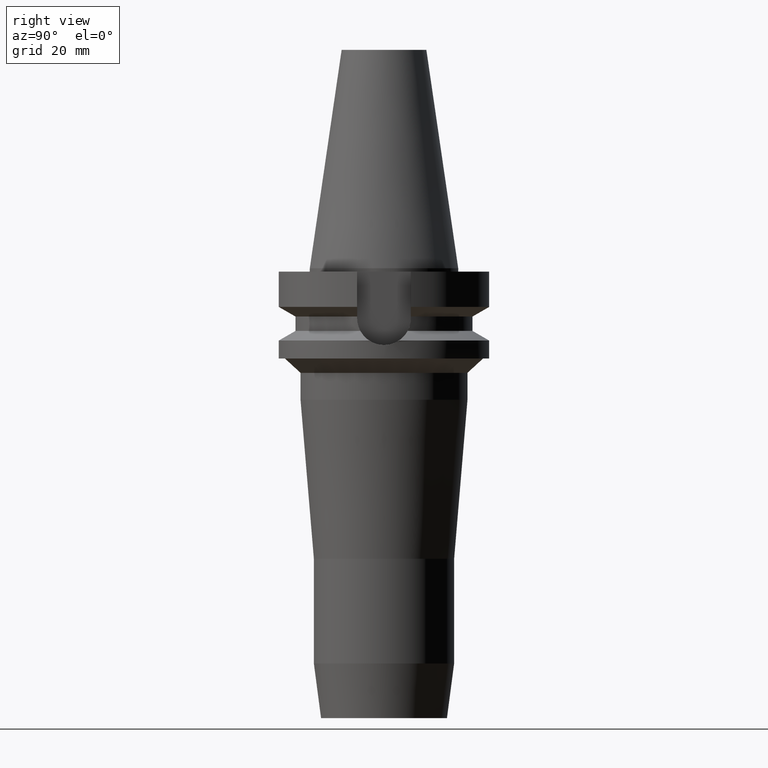
[diagram: clean part render]
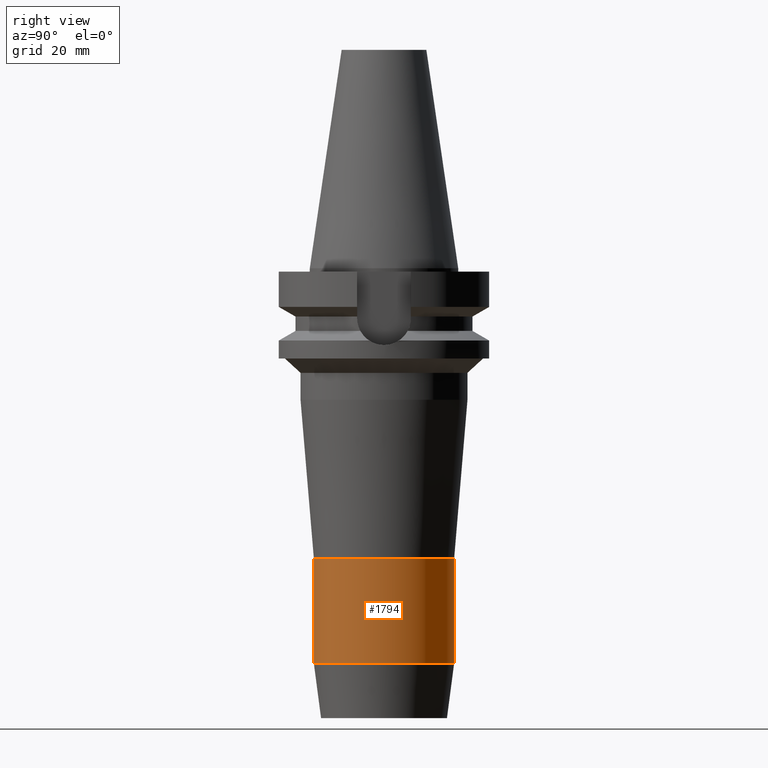
[diagram: same view with one face highlighted and labeled with its STEP entity id]
A machine part, right view. The second image highlights one B-rep face of the part: STEP entity #1794.
In plain terms, the highlighted cylindrical surface (partial cylindrical patch) has radius 21 mm, axis along (0, 0, -1).
Its self-contained STEP definition (entity closure, byte-faithful):
#455=CARTESIAN_POINT('',(0.E0,-1.549601491868E-14,-1.183691286576E2));
#456=DIRECTION('',(0.E0,0.E0,1.E0));
#457=DIRECTION('',(0.E0,-1.E0,0.E0));
#458=AXIS2_PLACEMENT_3D('',#455,#456,#457);
#478=DIRECTION('',(0.E0,-3.963928361392E-14,-1.E0));
#479=VECTOR('',#478,3.136912865760E1);
#480=CARTESIAN_POINT('',(0.E0,-2.1E1,-8.7E1));
#481=LINE('',#480,#479);
#485=DIRECTION('',(0.E0,3.918626322976E-14,-1.E0));
#486=VECTOR('',#485,3.136912865760E1);
#487=CARTESIAN_POINT('',(0.E0,2.1E1,-8.7E1));
#488=LINE('',#487,#486);
#499=CARTESIAN_POINT('',(0.E0,0.E0,-8.7E1));
#500=DIRECTION('',(0.E0,0.E0,-1.E0));
#501=DIRECTION('',(0.E0,1.E0,0.E0));
#502=AXIS2_PLACEMENT_3D('',#499,#500,#501);
#1236=CARTESIAN_POINT('',(0.E0,2.1E1,-1.183691286576E2));
#1237=VERTEX_POINT('',#1236);
#1238=CARTESIAN_POINT('',(0.E0,-2.1E1,-1.183691286576E2));
#1239=VERTEX_POINT('',#1238);
#1240=CARTESIAN_POINT('',(0.E0,2.1E1,-8.7E1));
#1241=VERTEX_POINT('',#1240);
#1242=CARTESIAN_POINT('',(0.E0,-2.1E1,-8.7E1));
#1243=VERTEX_POINT('',#1242);
#1782=CARTESIAN_POINT('',(0.E0,0.E0,7.5405E1));
#1783=DIRECTION('',(0.E0,0.E0,-1.E0));
#1784=DIRECTION('',(0.E0,-1.E0,0.E0));
#1785=AXIS2_PLACEMENT_3D('',#1782,#1783,#1784);
#1786=CYLINDRICAL_SURFACE('',#1785,2.1E1);
#1787=ORIENTED_EDGE('',*,*,#1772,.T.);
#1788=ORIENTED_EDGE('',*,*,#1749,.F.);
#1789=ORIENTED_EDGE('',*,*,#1776,.F.);
#1791=ORIENTED_EDGE('',*,*,#1790,.F.);
#1792=EDGE_LOOP('',(#1787,#1788,#1789,#1791));
#1793=FACE_OUTER_BOUND('',#1792,.F.);
#459=CIRCLE('',#458,2.1E1);
#503=CIRCLE('',#502,2.1E1);
#1749=EDGE_CURVE('',#1239,#1237,#459,.T.);
#1772=EDGE_CURVE('',#1241,#1237,#488,.T.);
#1776=EDGE_CURVE('',#1243,#1239,#481,.T.);
#1790=EDGE_CURVE('',#1241,#1243,#503,.T.);
#1794=ADVANCED_FACE('',(#1793),#1786,.T.);